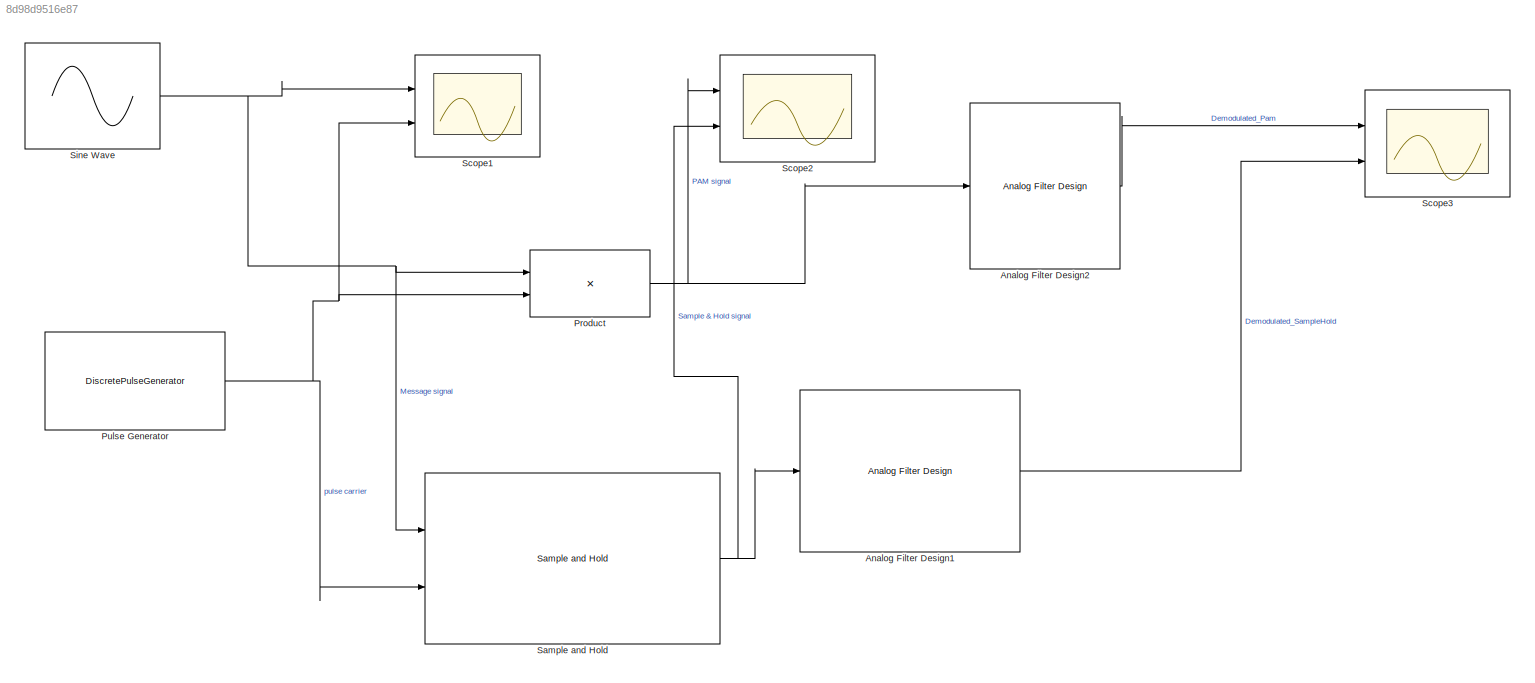
MODEL slx_8d98d9516e87
KIND model
BLOCK [Reference] Analog Filter Design1  REF=dsparch4/Analog
Filter Design
  N = 7
  Ports = [1, 1]
  Rp = 2
  Rs = 40
  SourceBlock = dsparch4/Analog\nFilter Design
  SourceType = Analog Filter Design
  Whi = 80
  Wlo = 2*pi*10
  filttype = Lowpass
  method = Butterworth
BLOCK [Reference] Analog Filter Design2  REF=dsparch4/Analog
Filter Design
  N = 2
  Ports = [1, 1]
  Rp = 2
  Rs = 40
  SourceBlock = dsparch4/Analog\nFilter Design
  SourceType = Analog Filter Design
  Whi = 80
  Wlo = 2*pi*10
  filttype = Lowpass
  method = Butterworth
BLOCK [Product] Product
  InputSameDT = off
  OutDataTypeStr = Inherit: Inherit via internal rule
  Ports = [2, 1]
  RndMeth = Floor
  SaturateOnIntegerOverflow = off
BLOCK [DiscretePulseGenerator] Pulse Generator
  Period = 0.02
  Ports = [0, 1]
  PulseType = Time based
  PulseWidth = 50
BLOCK [Reference] Sample and Hold  REF=powerlib_meascontrol/Additional Components/Sample and
Hold
  Ports = [2, 1]
  SourceBlock = powerlib_meascontrol/Additional Components/Sample and\nHold
  SourceType = Sample and Hold
  Ts = 0.001
  ic = 0
BLOCK [Scope] Scope1
  DataFormat = StructureWithTime
  Floating = off
  LimitDataPoints = off
  NumInputPorts = 2
  Ports = [2]
  SampleTime = 0
  SaveName = ScopeData1
  SaveToWorkspace = on
  ShowLegends = off
  YMax = 5~5
  YMin = -5~-5
BLOCK [Scope] Scope2
  DataFormat = StructureWithTime
  Floating = off
  NumInputPorts = 2
  Ports = [2]
  SampleTime = 0
  SaveName = ScopeData2
  ShowLegends = off
  YMax = 5~5
  YMin = -5~-5
BLOCK [Scope] Scope3
  DataFormat = StructureWithTime
  Floating = off
  NumInputPorts = 2
  Ports = [2]
  SampleTime = 0
  ShowLegends = off
  YMax = 5~5
  YMin = -5~-5
BLOCK [Sin] Sine Wave
  Frequency = 2*pi*10
  Ports = [0, 1]
  SampleTime = 0.001
LINE Analog Filter Design1:1 -> Scope3:2
LINE Analog Filter Design2:1 -> Scope3:1
NET Product:1 -> Analog Filter Design2:1, Scope2:1
NET Pulse Generator:1 -> Product:2, Sample and Hold:2, Scope1:2
NET Sample and Hold:1 -> Analog Filter Design1:1, Scope2:2
NET Sine Wave:1 -> Product:1, Sample and Hold:1, Scope1:1
note: NET lines group one-source signal fan-out (src -> all destinations, sorted); 1:1 wires keep LINE
